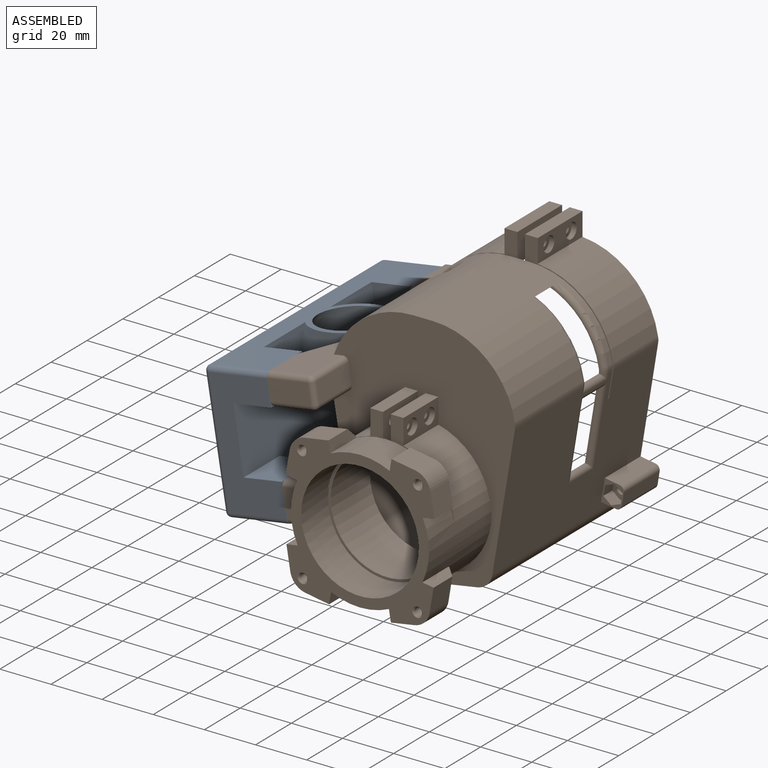
[diagram: assembled view]
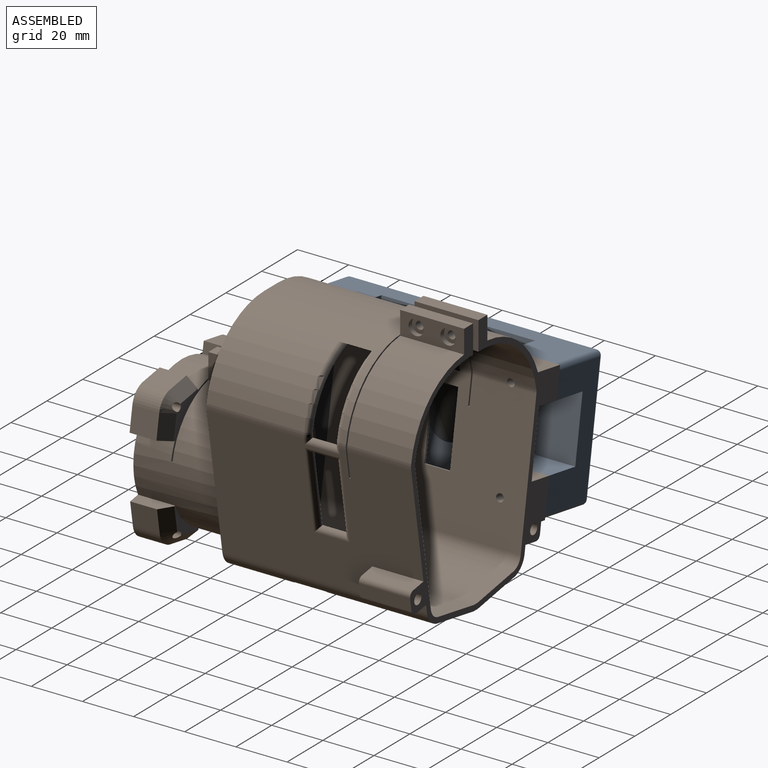
[diagram: assembled view, second angle]
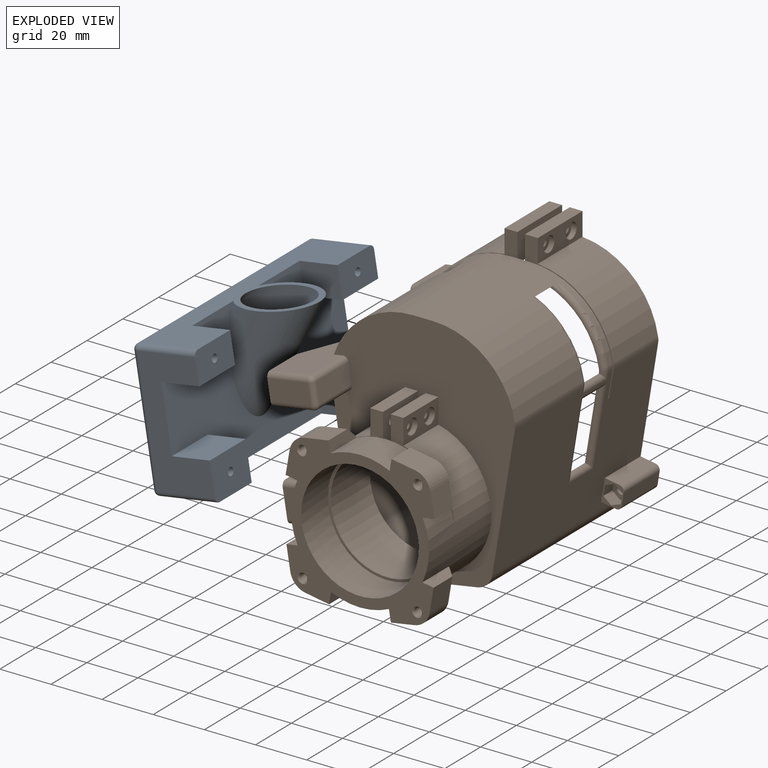
[diagram: exploded view]
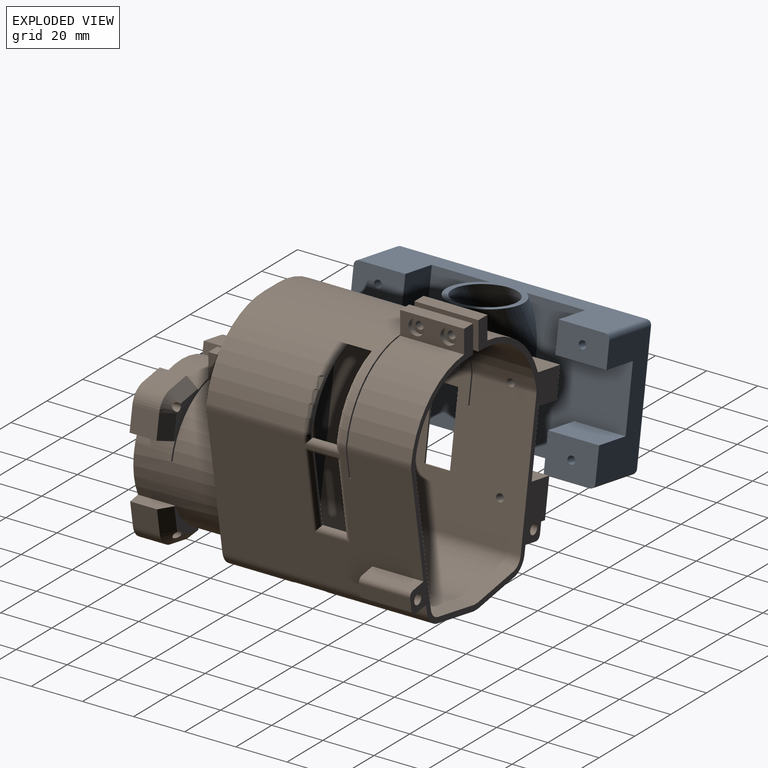
[diagram: exploded view, second angle]
ASSEMBLY  parts=2 mates=2
PART A: 48 faces, bbox 100x68.5x80.9 mm
  f0: cylinder r=1.5mm len=10mm, axis (0,1,0), area 94.2mm2, adj f15,f47
  f1: cylinder r=1.5mm len=10mm, axis (0,1,0), area 94.2mm2, adj f24,f45
  f2: cylinder r=1.5mm len=10mm, axis (0,1,0), area 94.2mm2, adj f21,f43
  f3: cylinder r=1.5mm len=10mm, axis (0,1,0), area 94.2mm2, adj f18,f41
  f4: cylinder r=11mm len=77.71mm, axis (0,0.57,0.82), area 4389.2mm2, adj f8,f9,f29,f30
  f5: cylinder r=13mm len=56.59mm, axis (0,0.57,0.82), area 1931.3mm2, adj f8,f10,f30,f31,f39
  f6: cylinder r=13mm len=55.65mm, axis (0,0.57,0.82), area 1943.3mm2, adj f7,f9
  f7: plane 100x52.39mm, normal (0,1,0), area 3267.5mm2, adj f6,f8,f9,f11,f12,f13,f14,f16
  f8: plane 96x54.21mm, normal (0,0,-1), area 1489.7mm2, adj f4,f5,f7,f17,f18,f20,f21,f27
  f9: plane 96x37.21mm, normal (0,0,1), area 1467.9mm2, adj f4,f6,f7,f13,f15,f23,f24,f25
  f10: plane 96x48.39mm, normal (0,-1,0), area 3571.7mm2, adj f5,f29,f31,f33,f35,f37,f39,f40
  f11: plane 48.39x23mm, normal (1,0,0), area 732.1mm2, adj f7,f14,f15,f16,f18,f26,f27,f37
  f12: plane 48.39x23mm, normal (-1,0,0), area 732.1mm2, adj f7,f19,f21,f22,f24,f25,f28,f33
  f13: plane 15x12mm, normal (-1,0,0), area 180mm2, adj f7,f9,f14,f15
  f14: plane 20x15mm, normal (0,0,-1), area 300mm2, adj f7,f11,f13,f15
  f15: plane 20x12mm, normal (0,1,0), area 232.1mm2, adj f0,f9,f11,f13,f14,f26
  f16: plane 20x15mm, normal (0,0,1), area 300mm2, adj f7,f11,f17,f18
  f17: plane 15x15mm, normal (-1,0,0), area 225mm2, adj f7,f8,f16,f18
  f18: plane 20x15mm, normal (0,1,0), area 292.1mm2, adj f3,f8,f11,f16,f17,f27
  f19: plane 20x15mm, normal (0,0,1), area 300mm2, adj f7,f12,f20,f21
  f20: plane 15x15mm, normal (1,0,0), area 225mm2, adj f7,f8,f19,f21
  f21: plane 20x15mm, normal (0,1,0), area 292.1mm2, adj f2,f8,f12,f19,f20,f28
  f22: plane 20x15mm, normal (0,0,-1), area 300mm2, adj f7,f12,f23,f24
  f23: plane 15x12mm, normal (1,0,0), area 180mm2, adj f7,f9,f22,f24
  f24: plane 20x12mm, normal (0,1,0), area 232.1mm2, adj f1,f9,f12,f22,f23,f25
  f25: cylinder r=2mm len=23mm, axis (0,1,0), area 72.3mm2, adj f9,f12,f24,f34
  f26: cylinder r=2mm len=23mm, axis (0,-1,0), area 72.3mm2, adj f9,f11,f15,f36
  f27: cylinder r=2mm len=23mm, axis (0,1,0), area 72.3mm2, adj f8,f11,f18,f38
  f28: cylinder r=2mm len=23mm, axis (0,-1,0), area 72.3mm2, adj f8,f12,f21,f32
  f29: cylinder r=2mm len=5.71mm, axis (0,1,0), area 55.6mm2, adj f4,f10
  f30: cylinder r=2mm len=5.24mm, axis (0,1,0), area 30.9mm2, adj f4,f5
  f31: cylinder r=2mm len=44.67mm, axis (-1,0,0), area 130.3mm2, adj f5,f8,f10,f32
  f32: sphere r=2mm, area 6.3mm2, adj f28,f31,f33
  f33: cylinder r=2mm len=48.39mm, axis (0,0,1), area 152mm2, adj f10,f12,f32,f34
  f34: sphere r=2mm, area 6.3mm2, adj f25,f33,f35
  f35: cylinder r=2mm len=96mm, axis (1,0,0), area 301.6mm2, adj f9,f10,f34,f36
  f36: sphere r=2mm, area 6.3mm2, adj f26,f35,f37
  f37: cylinder r=2mm len=48.39mm, axis (0,0,-1), area 152mm2, adj f10,f11,f36,f38
  f38: sphere r=2mm, area 6.3mm2, adj f27,f37,f39
  f39: cylinder r=2mm len=44.67mm, axis (-1,0,0), area 130.3mm2, adj f5,f8,f10,f38
  f40: cylinder r=4mm len=15mm, axis (0,-1,0), area 377mm2, adj f10,f41
  f41: plane 8x8mm, normal (0,-1,0), area 43.2mm2, adj f3,f40
  f42: cylinder r=4mm len=15mm, axis (0,-1,0), area 377mm2, adj f10,f43
  f43: plane 8x8mm, normal (0,-1,0), area 43.2mm2, adj f2,f42
  f44: cylinder r=4mm len=15mm, axis (0,-1,0), area 377mm2, adj f10,f45
  f45: plane 8x8mm, normal (0,-1,0), area 43.2mm2, adj f1,f44
  f46: cylinder r=4mm len=15mm, axis (0,-1,0), area 377mm2, adj f10,f47
  f47: plane 8x8mm, normal (0,-1,0), area 43.2mm2, adj f0,f46
PART B: 296 faces, bbox 87.2x115x101.9 mm
  f0: cylinder r=2mm len=15mm, axis (0,-1,0), area 188.5mm2, adj f46,f282
  f1: plane 18.35x12.67mm, normal (0,-1,0), area 122.5mm2, adj f3,f6,f137,f218,f261,f262,f283,f284
  f2: plane 9.82x8.94mm, normal (0,-1,0), area 27.9mm2, adj f28,f220,f221,f223,f253,f254,f289,f290
  f3: cylinder r=2mm len=8.11mm, axis (0.99,0,0.16), area 18.4mm2, adj f1,f6,f219,f252,f283,f288
  f4: cylinder r=7.2mm len=20.5mm, axis (0,-1,0), area 46.7mm2, adj f6,f26,f204,f250
  f5: cylinder r=7.2mm len=38mm, axis (0,-1,0), area 87.5mm2, adj f27,f28,f51,f243
  f6: plane 80x53.72mm, normal (-0.99,0,-0.16), area 3009.1mm2, adj f1,f3,f4,f20,f30,f46,f51,f55
  f7: plane 18x2.08mm, normal (0.16,0,-0.99), area 37.9mm2, adj f46,f137,f218,f261
  f8: plane 58.19x57.86mm, normal (0,-1,0), area 1189.5mm2, adj f21,f22,f52,f114,f115,f116,f117,f118
  f9: plane 53.18x23.01mm, normal (0,1,0), area 376.7mm2, adj f21,f22,f52,f74,f75,f114,f118,f119
  f10: cylinder r=5mm len=9.34mm, axis (0,-1,0), area 13.9mm2, adj f41,f46,f89,f190
  f11: plane 19.5x9.79mm, normal (-1,0,0), area 136.1mm2, adj f21,f67,f68,f77,f172,f173,f174,f175
  f12: plane 19.5x9.79mm, normal (1,0,0), area 134.4mm2, adj f21,f66,f68,f79,f168,f170
  f13: plane 19.5x14.05mm, normal (-1,0,0), area 258.9mm2, adj f61,f66,f68,f79,f166,f167
  f14: plane 19.5x14.05mm, normal (1,0,0), area 258.9mm2, adj f61,f67,f68,f77,f164,f165
  f15: plane 25x9.11mm, normal (-1,0,0), area 172.9mm2, adj f19,f46,f93,f94,f150,f151,f152,f153
  f16: plane 25x9.11mm, normal (1,0,0), area 171.2mm2, adj f46,f49,f91,f92,f146,f148
  f17: plane 25x11.2mm, normal (-1,0,0), area 264.9mm2, adj f46,f47,f91,f92,f144,f145
  f18: plane 25x11.2mm, normal (1,0,0), area 264.9mm2, adj f24,f46,f93,f94,f142,f143
  f19: cylinder r=32.63mm len=29.55mm, axis (0,-1,0), area 976.4mm2, adj f15,f20,f46,f94,f139,f141,f263
  f20: cylinder r=7.2mm len=5mm, axis (0,-1,0), area 11.5mm2, adj f6,f19,f94,f141
  f21: cylinder r=27mm len=54mm, axis (0,1,0), area 3868.5mm2, adj f8,f9,f11,f12,f51,f53,f63,f65
  f22: cylinder r=27mm len=23.19mm, axis (0,1,0), area 347.5mm2, adj f8,f9,f118,f119
  f23: plane 25x1.16mm, normal (0,0,-1), area 28.9mm2, adj f51,f57,f59,f227
  f24: plane 25x2.32mm, normal (0,0,-1), area 58mm2, adj f18,f46,f89,f94
  f25: plane 52.5x7.64mm, normal (0,0,-1), area 401.2mm2, adj f44,f45,f50,f97
  f26: cylinder r=32.63mm len=54.5mm, axis (0,-1,0), area 1947.2mm2, adj f4,f30,f48,f51,f72,f97,f103,f204
  f27: cylinder r=32.63mm len=54.5mm, axis (0,-1,0), area 2055.4mm2, adj f5,f29,f48,f51,f97,f98,f238,f241
  f28: plane 80x53.72mm, normal (0.99,0,-0.16), area 3685.2mm2, adj f2,f5,f29,f46,f51,f54,f62,f92
  f29: cylinder r=7.2mm len=2.5mm, axis (0,-1,0), area 5.8mm2, adj f27,f28,f97,f239
  f30: cylinder r=7.2mm len=2.5mm, axis (0,-1,0), area 5.8mm2, adj f6,f26,f97,f246
  f31: plane 41x19.57mm, normal (-0.17,0,-0.99), area 813.7mm2, adj f32,f46,f55,f236
  f32: cylinder r=7.2mm len=41mm, axis (0,-1,0), area 49.8mm2, adj f31,f46,f58,f235
  f33: cylinder r=7.2mm len=41mm, axis (0,-1,0), area 49.8mm2, adj f34,f46,f58,f233
  f34: plane 41x19.57mm, normal (0.17,0,-0.99), area 813.7mm2, adj f33,f46,f62,f232
  f35: cylinder r=5mm len=38mm, axis (0,-1,0), area 60.7mm2, adj f37,f45,f50,f100
  f36: cylinder r=5mm len=4.5mm, axis (0,-1,0), area 7.2mm2, adj f37,f45,f97,f99
  f37: plane 78x53.72mm, normal (-0.99,0,0.16), area 3954.4mm2, adj f35,f36,f46,f50,f80,f81,f92,f96
  f38: cylinder r=5mm len=43mm, axis (0,-1,0), area 36.2mm2, adj f39,f46,f82,f110
  f39: plane 43x1.16mm, normal (0,0,1), area 49.7mm2, adj f38,f40,f46,f110
  f40: cylinder r=5mm len=43mm, axis (0,-1,0), area 36.2mm2, adj f39,f46,f86,f110
  f41: plane 78x53.72mm, normal (0.99,0,0.16), area 3947.2mm2, adj f10,f42,f43,f46,f50,f87,f88,f94
  f42: cylinder r=5mm len=38mm, axis (0,-1,0), area 60.7mm2, adj f41,f44,f50,f101
  f43: cylinder r=5mm len=4.5mm, axis (0,-1,0), area 7.2mm2, adj f41,f44,f97,f102
  f44: cylinder r=30.43mm len=52.5mm, axis (0,-1,0), area 1883.6mm2, adj f25,f42,f43,f50,f97,f101,f102,f103
  f45: cylinder r=30.43mm len=52.5mm, axis (0,-1,0), area 1883.6mm2, adj f25,f35,f36,f50,f97,f98,f99,f100
  f46: plane 101.9x83.79mm, normal (0,1,0), area 1042.3mm2, adj f0,f6,f7,f10,f15,f16,f17,f18
  f47: plane 25x2.32mm, normal (0,0,-1), area 58mm2, adj f17,f46,f90,f92
  f48: plane 54.5x7.64mm, normal (0,0,1), area 416.4mm2, adj f26,f27,f51,f97
  f49: cylinder r=32.63mm len=29.55mm, axis (0,-1,0), area 1086.2mm2, adj f16,f46,f54,f92
  f50: plane 88.5x67.88mm, normal (0,1,0), area 3388.3mm2, adj f25,f35,f37,f41,f42,f44,f45,f61
  f51: plane 92.9x71.44mm, normal (0,-1,0), area 3406.4mm2, adj f5,f6,f21,f23,f26,f27,f28,f48
  f52: cylinder r=23mm len=46mm, axis (0,1,0), area 2135.6mm2, adj f8,f9,f68,f74,f75
  f53: plane 15.54x13.11mm, normal (0,-1,0), area 149.2mm2, adj f21,f64,f280,f281
  f54: cylinder r=7.2mm len=25mm, axis (0,-1,0), area 57.5mm2, adj f28,f46,f49,f92
  f55: cylinder r=7.2mm len=80mm, axis (0,-1,0), area 661.1mm2, adj f6,f31,f46,f51,f56,f107,f230,f237
  f56: plane 25x19.57mm, normal (-0.17,0,-0.99), area 496.2mm2, adj f51,f55,f57,f229
  f57: cylinder r=7.2mm len=25mm, axis (0,-1,0), area 30.3mm2, adj f23,f51,f56,f228
  f58: plane 41x1.16mm, normal (0,0,-1), area 47.4mm2, adj f32,f33,f46,f234
  f59: cylinder r=7.2mm len=25mm, axis (0,-1,0), area 30.3mm2, adj f23,f51,f60,f226
  f60: plane 25x19.57mm, normal (0.17,0,-0.99), area 496.2mm2, adj f51,f59,f62,f225
  f61: cylinder r=22mm len=44mm, axis (0,-1,0), area 2951.8mm2, adj f13,f14,f50,f51,f68,f76,f77,f78
  f62: cylinder r=7.2mm len=80mm, axis (0,-1,0), area 661.1mm2, adj f28,f34,f46,f51,f60,f108,f224,f231
  f63: plane 31.5x14.25mm, normal (-0.16,0,0.99), area 308.3mm2, adj f6,f21,f51,f64,f257,f280
  f64: plane 19.64x14.8mm, normal (-0.99,0,-0.16), area 278.4mm2, adj f53,f63,f65,f195,f255,f256,f257,f280
  f65: plane 31.5x14.25mm, normal (0.16,0,-0.99), area 308.3mm2, adj f6,f21,f51,f64,f255,f281
  f66: plane 19.5x5mm, normal (0,0,1), area 97.5mm2, adj f12,f13,f68,f79
  f67: plane 19.5x5mm, normal (0,0,1), area 97.5mm2, adj f11,f14,f68,f77
  f68: plane 59x53.18mm, normal (0,-1,0), area 499mm2, adj f11,f12,f13,f14,f21,f52,f61,f66
  f69: plane 19.64x11.84mm, normal (-0.99,0,-0.16), area 219.4mm2, adj f70,f72,f73,f194,f258,f259,f260,f273
  f70: plane 31.5x15.79mm, normal (0.16,0,-0.99), area 336.4mm2, adj f6,f51,f69,f258,f276,f279
  f71: plane 18x7.89mm, normal (0.99,0,0.16), area 144mm2, adj f51,f274,f277,f279
  f72: plane 35.9x15.79mm, normal (-0.16,0,0.99), area 376.3mm2, adj f26,f51,f69,f260,f273,f274
  f73: plane 17.08x10.48mm, normal (0,-1,0), area 128mm2, adj f69,f273,f276,f277
  f74: plane 3.94x0.69mm, normal (0.17,0,0.98), area 2mm2, adj f9,f21,f52,f68
  f75: plane 3.94x0.69mm, normal (-0.17,0,0.98), area 2mm2, adj f9,f21,f52,f68
  f76: plane 4.92x0.87mm, normal (0.17,0,0.98), area 2.5mm2, adj f21,f51,f61,f77
  f77: plane 32.18x25.09mm, normal (0,1,0), area 210.2mm2, adj f11,f14,f21,f61,f67,f76
  f78: plane 4.92x0.87mm, normal (-0.17,0,0.98), area 2.5mm2, adj f21,f51,f61,f79
  f79: plane 32.18x25.09mm, normal (0,1,0), area 210.2mm2, adj f12,f13,f21,f61,f66,f78
  f80: cylinder r=5mm len=25mm, axis (0,-1,0), area 40mm2, adj f37,f46,f90,f92
  f81: cylinder r=5mm len=78mm, axis (0,-1,0), area 483.5mm2, adj f37,f46,f50,f82
  f82: plane 78x19.57mm, normal (-0.17,0,0.99), area 1385.4mm2, adj f38,f46,f50,f81,f83,f108,f109,f110
  f83: cylinder r=5mm len=25mm, axis (0,-1,0), area 21.1mm2, adj f50,f82,f84,f109
  f84: plane 25x1.16mm, normal (0,0,1), area 28.9mm2, adj f50,f83,f85,f109
  f85: cylinder r=5mm len=25mm, axis (0,-1,0), area 21.1mm2, adj f50,f84,f86,f109
  f86: plane 78x19.57mm, normal (0.17,0,0.99), area 1385.4mm2, adj f40,f46,f50,f85,f87,f107,f109,f110
  f87: cylinder r=5mm len=78mm, axis (0,-1,0), area 483.5mm2, adj f41,f46,f50,f86
  f88: cylinder r=5mm len=14.34mm, axis (0,-1,0), area 21.9mm2, adj f41,f89,f94,f190
  f89: cylinder r=30.43mm len=30.06mm, axis (0,-1,0), area 1072.5mm2, adj f10,f24,f46,f88,f94,f190
  f90: cylinder r=30.43mm len=30.06mm, axis (0,-1,0), area 1075.5mm2, adj f46,f47,f80,f92
  f91: plane 25x5mm, normal (0,0,1), area 125mm2, adj f16,f17,f46,f92
  f92: plane 49x34.64mm, normal (0,-1,0), area 175.7mm2, adj f16,f17,f28,f37,f47,f49,f54,f80
  f93: plane 25x5mm, normal (0,0,1), area 125mm2, adj f15,f18,f46,f94
  f94: plane 49x34.64mm, normal (0,-1,0), area 175.7mm2, adj f6,f15,f18,f19,f20,f24,f41,f88
  f95: plane 2.23x0.5mm, normal (0,0,1), area 1.1mm2, adj f6,f41,f94,f97
  f96: plane 2.23x0.5mm, normal (0,0,1), area 1.1mm2, adj f28,f37,f92,f97
  f97: plane 72.28x40mm, normal (0,1,0), area 267.7mm2, adj f6,f25,f26,f27,f28,f29,f30,f36
  f98: plane 14x7.5mm, normal (0,0,-1), area 79.8mm2, adj f27,f45,f99,f100,f238,f241
  f99: plane 27.02x24.83mm, normal (0,-1,0), area 7.8mm2, adj f36,f37,f45,f98,f238,f239,f240,f242
  f100: plane 27.02x24.83mm, normal (0,1,0), area 7.8mm2, adj f35,f37,f45,f98,f241,f242,f243,f244
  f101: plane 27.02x24.83mm, normal (0,1,0), area 7.8mm2, adj f41,f42,f44,f103,f248,f249,f250,f251
  f102: plane 27.02x24.83mm, normal (0,-1,0), area 7.8mm2, adj f41,f43,f44,f103,f245,f246,f247,f248
  f103: plane 14x7.5mm, normal (0,0,-1), area 79.8mm2, adj f26,f44,f101,f102,f245,f251
  f104: plane 10.05x0.53mm, normal (0,0,-1), area 5.3mm2, adj f41,f105,f106,f269,f271,f272
  f105: plane 28.02x4.79mm, normal (0,-1,0), area 5.7mm2, adj f41,f104,f269,f270
  f106: plane 28.02x4.79mm, normal (0,1,0), area 5.7mm2, adj f41,f104,f270,f272
  f107: plane 14.02x7.32mm, normal (0,0,-1), area 76.2mm2, adj f55,f86,f109,f110,f229,f230,f236,f237
  f108: plane 14.02x7.32mm, normal (0,0,-1), area 76.2mm2, adj f62,f82,f109,f110,f224,f225,f231,f232
  f109: plane 37.28x3mm, normal (0,1,0), area 7.3mm2, adj f82,f83,f84,f85,f86,f107,f108,f225
  f110: plane 37.28x3mm, normal (0,-1,0), area 7.3mm2, adj f38,f39,f40,f82,f86,f107,f108,f232
  f111: plane 28.02x4.79mm, normal (0,1,0), area 5.7mm2, adj f37,f113,f266,f268
  f112: plane 28.02x4.79mm, normal (0,-1,0), area 5.7mm2, adj f37,f113,f265,f266
  f113: plane 10.05x0.53mm, normal (0,0,-1), area 5.3mm2, adj f37,f111,f112,f265,f267,f268
  f114: plane 14.5x4.58mm, normal (0.17,0,-0.99), area 59.3mm2, adj f8,f9,f21,f115,f211
  f115: plane 10.5x9.26mm, normal (0.99,0,0.17), area 98.7mm2, adj f8,f114,f116,f211
  f116: cylinder r=7.2mm len=10.5mm, axis (0,1,0), area 93.7mm2, adj f8,f115,f117,f210
  f117: plane 10.5x9.27mm, normal (0.16,0,0.99), area 98.7mm2, adj f8,f116,f118,f209
  f118: plane 14.5x4.38mm, normal (-0.99,0,0.16), area 56.4mm2, adj f8,f9,f22,f117,f209
  f119: plane 14.5x4.38mm, normal (0.99,0,0.16), area 56.4mm2, adj f8,f9,f22,f120,f214
  f120: plane 10.5x9.27mm, normal (-0.16,0,0.99), area 98.7mm2, adj f8,f119,f121,f214
  f121: cylinder r=7.2mm len=10.5mm, axis (0,1,0), area 93.7mm2, adj f8,f120,f122,f213
  f122: plane 10.5x9.26mm, normal (-0.99,0,0.17), area 98.7mm2, adj f8,f121,f123,f212
  f123: plane 14.5x4.58mm, normal (-0.17,0,-0.99), area 59.3mm2, adj f8,f9,f21,f122,f212
  f124: plane 14.5x4.38mm, normal (-0.16,0,0.99), area 56.4mm2, adj f8,f21,f125,f129,f217
  f125: plane 10.5x9.27mm, normal (-0.99,0,-0.16), area 98.7mm2, adj f8,f124,f126,f217
  f126: cylinder r=7.2mm len=10.5mm, axis (0,1,0), area 93.7mm2, adj f8,f125,f127,f216
  f127: plane 10.5x9.26mm, normal (-0.17,0,-0.99), area 98.7mm2, adj f8,f126,f128,f215
  f128: plane 14.5x4.58mm, normal (0.99,0,-0.17), area 59.3mm2, adj f8,f21,f127,f129,f215
  f129: plane 13.56x13.51mm, normal (0,1,0), area 48.7mm2, adj f21,f124,f128,f197,f215,f216,f217
  f130: plane 10.5x9.27mm, normal (0.99,0,-0.16), area 98.7mm2, adj f8,f131,f134,f206
  f131: plane 14.5x4.38mm, normal (0.16,0,0.99), area 56.4mm2, adj f8,f21,f130,f135,f206
  f132: plane 14.5x4.58mm, normal (-0.99,0,-0.17), area 59.3mm2, adj f8,f21,f133,f135,f208
  f133: plane 10.5x9.26mm, normal (0.17,0,-0.99), area 98.7mm2, adj f8,f132,f134,f208
  f134: cylinder r=7.2mm len=10.5mm, axis (0,1,0), area 93.7mm2, adj f8,f130,f133,f207
  f135: plane 13.56x13.51mm, normal (0,1,0), area 48.7mm2, adj f21,f131,f132,f196,f206,f207,f208
  f136: plane 18x9.87mm, normal (-0.16,0,0.99), area 180mm2, adj f6,f46,f137,f262
  f137: plane 20x14.8mm, normal (-0.99,0,-0.16), area 285.7mm2, adj f1,f7,f46,f136,f193,f261,f262
  f138: plane 18x9.87mm, normal (0.16,0,-0.99), area 180mm2, adj f6,f46,f140,f264
  f139: plane 18x12.38mm, normal (-0.16,0,0.99), area 225.7mm2, adj f19,f46,f140,f263
  f140: plane 20x11.84mm, normal (-0.99,0,-0.16), area 225.7mm2, adj f46,f138,f139,f141,f192,f263,f264
  f141: plane 11.41x9.76mm, normal (0,-1,0), area 83.2mm2, adj f6,f19,f20,f140,f263,f264
  f142: cylinder r=1.55mm len=3.1mm, axis (-1,0,0), area 29.2mm2, adj f18,f156
  f143: cylinder r=1.55mm len=3.1mm, axis (-1,0,0), area 29.2mm2, adj f18,f163
  f144: cylinder r=1.55mm len=3.1mm, axis (1,0,0), area 29.2mm2, adj f17,f149
  f145: cylinder r=1.55mm len=3.1mm, axis (1,0,0), area 29.2mm2, adj f17,f147
  f146: cylinder r=3mm len=6mm, axis (1,0,0), area 37.7mm2, adj f16,f147
  f147: plane 6x6mm, normal (1,0,0), area 20.7mm2, adj f145,f146
  f148: cylinder r=3mm len=6mm, axis (1,0,0), area 37.7mm2, adj f16,f149
  f149: plane 6x6mm, normal (1,0,0), area 20.7mm2, adj f144,f148
  f150: plane 3.25x2mm, normal (0,1,0), area 6.5mm2, adj f15,f151,f155,f156
  f151: plane 2.81x2mm, normal (0,0.5,-0.87), area 6.5mm2, adj f15,f150,f152,f156
  f152: plane 2.81x2mm, normal (0,-0.5,-0.87), area 6.5mm2, adj f15,f151,f153,f156
  f153: plane 3.25x2mm, normal (0,-1,0), area 6.5mm2, adj f15,f152,f154,f156
  f154: plane 2.81x2mm, normal (0,-0.5,0.87), area 6.5mm2, adj f15,f153,f155,f156
  f155: plane 2.81x2mm, normal (0,0.5,0.87), area 6.5mm2, adj f15,f150,f154,f156
  f156: plane 6.5x5.63mm, normal (-1,0,0), area 19.9mm2, adj f142,f150,f151,f152,f153,f154,f155
  f157: plane 2.81x2mm, normal (0,0.5,-0.87), area 6.5mm2, adj f15,f158,f162,f163
  f158: plane 2.81x2mm, normal (0,-0.5,-0.87), area 6.5mm2, adj f15,f157,f159,f163
  f159: plane 3.25x2mm, normal (0,-1,0), area 6.5mm2, adj f15,f158,f160,f163
  f160: plane 2.81x2mm, normal (0,-0.5,0.87), area 6.5mm2, adj f15,f159,f161,f163
  f161: plane 2.81x2mm, normal (0,0.5,0.87), area 6.5mm2, adj f15,f160,f162,f163
  f162: plane 3.25x2mm, normal (0,1,0), area 6.5mm2, adj f15,f157,f161,f163
  f163: plane 6.5x5.63mm, normal (-1,0,0), area 19.9mm2, adj f143,f157,f158,f159,f160,f161,f162
  f164: cylinder r=1.55mm len=3.1mm, axis (-1,0,0), area 29.2mm2, adj f14,f178
  f165: cylinder r=1.55mm len=3.1mm, axis (-1,0,0), area 29.2mm2, adj f14,f185
  f166: cylinder r=1.55mm len=3.1mm, axis (1,0,0), area 29.2mm2, adj f13,f171
  f167: cylinder r=1.55mm len=3.1mm, axis (1,0,0), area 29.2mm2, adj f13,f169
  f168: cylinder r=3mm len=6mm, axis (1,0,0), area 37.7mm2, adj f12,f169
  f169: plane 6x6mm, normal (1,0,0), area 20.7mm2, adj f167,f168
  f170: cylinder r=3mm len=6mm, axis (1,0,0), area 37.7mm2, adj f12,f171
  f171: plane 6x6mm, normal (1,0,0), area 20.7mm2, adj f166,f170
  f172: plane 3.25x2mm, normal (0,-1,0), area 6.5mm2, adj f11,f173,f177,f178
  f173: plane 2.81x2mm, normal (0,-0.5,0.87), area 6.5mm2, adj f11,f172,f174,f178
  f174: plane 2.81x2mm, normal (0,0.5,0.87), area 6.5mm2, adj f11,f173,f175,f178
  f175: plane 3.25x2mm, normal (0,1,0), area 6.5mm2, adj f11,f174,f176,f178
  f176: plane 2.81x2mm, normal (0,0.5,-0.87), area 6.5mm2, adj f11,f175,f177,f178
  f177: plane 2.81x2mm, normal (0,-0.5,-0.87), area 6.5mm2, adj f11,f172,f176,f178
  f178: plane 6.5x5.63mm, normal (-1,0,0), area 19.9mm2, adj f164,f172,f173,f174,f175,f176,f177
  f179: plane 2.81x2mm, normal (0,0.5,-0.87), area 6.5mm2, adj f11,f180,f184,f185
  f180: plane 2.81x2mm, normal (0,-0.5,-0.87), area 6.5mm2, adj f11,f179,f181,f185
  f181: plane 3.25x2mm, normal (0,-1,0), area 6.5mm2, adj f11,f180,f182,f185
  f182: plane 2.81x2mm, normal (0,-0.5,0.87), area 6.5mm2, adj f11,f181,f183,f185
  f183: plane 2.81x2mm, normal (0,0.5,0.87), area 6.5mm2, adj f11,f182,f184,f185
  f184: plane 3.25x2mm, normal (0,1,0), area 6.5mm2, adj f11,f179,f183,f185
  f185: plane 6.5x5.63mm, normal (-1,0,0), area 19.9mm2, adj f165,f179,f180,f181,f182,f183,f184
  f186: cylinder r=1.5mm len=14.79mm, axis (-0.99,0,-0.16), area 136.7mm2, adj f187,f195
  f187: plane 3x2.96mm, normal (-0.99,0,-0.16), area 7.1mm2, adj f186
  f188: cylinder r=1.5mm len=14.79mm, axis (-0.99,0,-0.16), area 136.7mm2, adj f189,f194
  f189: plane 3x2.96mm, normal (-0.99,0,-0.16), area 7.1mm2, adj f188
  f190: cylinder r=1.5mm len=12.73mm, axis (-0.99,0,-0.16), area 112.8mm2, adj f10,f41,f88,f89,f192
  f191: cylinder r=1.5mm len=12.03mm, axis (-0.99,0,-0.16), area 110.3mm2, adj f41,f193
  f192: cone r=1.5mm half-angle=45deg, axis (-0.99,0,-0.16), area 7.8mm2, adj f140,f190
  f193: cone r=1.5mm half-angle=45deg, axis (-0.99,0,-0.16), area 7.8mm2, adj f137,f191
  f194: cone r=1.5mm half-angle=45deg, axis (-0.99,0,-0.16), area 7.8mm2, adj f69,f188
  f195: cone r=1.5mm half-angle=45deg, axis (-0.99,0,-0.16), area 7.8mm2, adj f64,f186
  f196: cylinder r=1.5mm len=14mm, axis (0,-1,0), area 126.6mm2, adj f135,f201,f207
  f197: cylinder r=1.5mm len=14mm, axis (0,-1,0), area 126.7mm2, adj f129,f200,f216
  f198: cylinder r=1.5mm len=14mm, axis (0,-1,0), area 126.6mm2, adj f9,f203,f213
  f199: cylinder r=1.5mm len=14mm, axis (0,-1,0), area 126.6mm2, adj f9,f202,f210
  f200: cone r=1.5mm half-angle=45deg, axis (0,-1,0), area 7.8mm2, adj f8,f197
  f201: cone r=1.5mm half-angle=45deg, axis (0,-1,0), area 7.8mm2, adj f8,f196
  f202: cone r=2mm half-angle=45deg, axis (0,-1,0), area 7.8mm2, adj f8,f199
  f203: cone r=1.5mm half-angle=45deg, axis (0,-1,0), area 7.8mm2, adj f8,f198
  f204: plane 19.56x11.15mm, normal (-0.85,0.5,-0.14), area 162mm2, adj f4,f6,f26,f258,f259,f260
  f205: plane 16.86x12.43mm, normal (-0.85,0.5,-0.14), area 214.1mm2, adj f6,f255,f256,f257
  f206: plane 9.92x5.47mm, normal (0.7,0.71,-0.11), area 53.1mm2, adj f130,f131,f135,f207
  f207: cone r=7.2mm half-angle=45deg, axis (0,-1,0), area 31mm2, adj f134,f135,f196,f206,f208
  f208: plane 9.93x5.52mm, normal (0.12,0.71,-0.7), area 53.1mm2, adj f132,f133,f135,f207
  f209: plane 9.92x5.47mm, normal (0.11,0.71,0.7), area 53.1mm2, adj f9,f117,f118,f210
  f210: cone r=7.2mm half-angle=45deg, axis (0,-1,0), area 31mm2, adj f9,f116,f199,f209,f211
  f211: plane 9.93x5.52mm, normal (0.7,0.71,0.12), area 53.1mm2, adj f9,f114,f115,f210
  f212: plane 9.93x5.52mm, normal (-0.7,0.71,0.12), area 53.1mm2, adj f9,f122,f123,f213
  f213: cone r=3.2mm half-angle=45deg, axis (0,-1,0), area 31mm2, adj f9,f121,f198,f212,f214
  f214: plane 9.92x5.47mm, normal (-0.11,0.71,0.7), area 53.1mm2, adj f9,f119,f120,f213
  f215: plane 9.93x5.52mm, normal (-0.12,0.71,-0.7), area 53.1mm2, adj f127,f128,f129,f216
  f216: cone r=3.2mm half-angle=45deg, axis (0,-1,0), area 31mm2, adj f126,f129,f197,f215,f217
  f217: plane 9.92x5.47mm, normal (-0.7,0.71,-0.11), area 53.1mm2, adj f124,f125,f129,f216
  f218: plane 20x6.22mm, normal (-0.99,0,-0.16), area 86.9mm2, adj f1,f7,f46,f252,f261
  f219: plane 18x5.82mm, normal (0.16,0,-0.99), area 106.1mm2, adj f3,f6,f46,f252
  f220: plane 20x4.89mm, normal (0.99,0,-0.16), area 99.2mm2, adj f2,f46,f253,f254
  f221: plane 20x5.82mm, normal (0.16,0,0.99), area 117.9mm2, adj f2,f28,f46,f254
  f222: cylinder r=2mm len=15mm, axis (0,-1,0), area 188.5mm2, adj f46,f295
  f223: plane 20x5.82mm, normal (-0.16,0,-0.99), area 117.9mm2, adj f2,f28,f46,f253
  f224: torus R=5.2mm, axis (0,-1,0), area 7.3mm2, adj f62,f108,f225
  f225: cylinder r=2mm len=19.9mm, axis (0.99,0,0.17), area 61.9mm2, adj f60,f108,f109,f224,f226
  f226: torus R=5.2mm, axis (0,-1,0), area 3.4mm2, adj f59,f109,f225,f227
  f227: cylinder r=2mm len=2mm, axis (-1,0,0), area 3.6mm2, adj f23,f109,f226,f228
  f228: torus R=5.2mm, axis (0,-1,0), area 3.4mm2, adj f57,f109,f227,f229
  f229: cylinder r=2mm len=19.9mm, axis (0.99,0,-0.17), area 61.9mm2, adj f56,f107,f109,f228,f230
  f230: torus R=5.2mm, axis (0,-1,0), area 7.3mm2, adj f55,f107,f229
  f231: torus R=5.2mm, axis (0,-1,0), area 7.3mm2, adj f62,f108,f232
  f232: cylinder r=2mm len=19.9mm, axis (-0.99,0,-0.17), area 61.9mm2, adj f34,f108,f110,f231,f233
  f233: torus R=5.2mm, axis (0,-1,0), area 3.4mm2, adj f33,f110,f232,f234
  f234: cylinder r=2mm len=2mm, axis (1,0,0), area 3.6mm2, adj f58,f110,f233,f235
  f235: torus R=5.2mm, axis (0,-1,0), area 3.4mm2, adj f32,f110,f234,f236
  f236: cylinder r=2mm len=19.9mm, axis (-0.99,0,0.17), area 61.9mm2, adj f31,f107,f110,f235,f237
  f237: torus R=5.2mm, axis (0,-1,0), area 7.3mm2, adj f55,f107,f236
  f238: torus R=30.63mm, axis (0,1,0), area 106.7mm2, adj f27,f98,f99,f239
  f239: torus R=5.2mm, axis (0,1,0), area 6.5mm2, adj f29,f99,f238,f240
  f240: cylinder r=2mm len=2.53mm, axis (-0.16,0,-0.99), area 3mm2, adj f28,f99,f239,f242
  f241: torus R=30.63mm, axis (0,1,0), area 106.7mm2, adj f27,f98,f100,f243
  f242: cylinder r=2mm len=14mm, axis (0,1,0), area 38mm2, adj f28,f37,f99,f100,f240,f244
  f243: torus R=5.2mm, axis (0,1,0), area 6.5mm2, adj f5,f100,f241,f244
  f244: cylinder r=2mm len=2.53mm, axis (0.16,0,0.99), area 3mm2, adj f28,f100,f242,f243
  f245: torus R=30.63mm, axis (0,1,0), area 106.7mm2, adj f26,f102,f103,f246
  f246: torus R=5.2mm, axis (0,1,0), area 6.5mm2, adj f30,f102,f245,f247
  f247: cylinder r=2mm len=2.53mm, axis (-0.16,0,0.99), area 3mm2, adj f6,f102,f246,f248
  f248: cylinder r=2mm len=14mm, axis (0,1,0), area 38mm2, adj f6,f41,f101,f102,f247,f249
  f249: cylinder r=2mm len=2.53mm, axis (0.16,0,-0.99), area 3mm2, adj f6,f101,f248,f250
  f250: torus R=5.2mm, axis (0,1,0), area 6.5mm2, adj f4,f101,f249,f251
  f251: torus R=30.63mm, axis (0,1,0), area 106.7mm2, adj f26,f101,f103,f250
  f252: cylinder r=2mm len=20mm, axis (0,-1,0), area 60.5mm2, adj f3,f46,f218,f219
  f253: cylinder r=2mm len=20mm, axis (0,-1,0), area 62.8mm2, adj f2,f46,f220,f223
  f254: cylinder r=2mm len=20mm, axis (0,1,0), area 62.8mm2, adj f2,f46,f220,f221
  f255: cylinder r=2mm len=21.32mm, axis (-0.49,-0.87,-0.08), area 62.6mm2, adj f6,f64,f65,f205,f256
  f256: cylinder r=2mm len=12.87mm, axis (-0.16,0,0.99), area 12.6mm2, adj f64,f205,f255,f257
  f257: cylinder r=2mm len=21.32mm, axis (0.49,0.87,0.08), area 62.6mm2, adj f6,f63,f64,f205,f256
  f258: cylinder r=2mm len=21.32mm, axis (-0.49,-0.87,-0.08), area 62.6mm2, adj f6,f69,f70,f204,f259
  f259: cylinder r=2mm len=9.91mm, axis (-0.16,0,0.99), area 9.4mm2, adj f69,f204,f258,f260
  f260: cylinder r=2mm len=24.44mm, axis (0.49,0.87,0.08), area 76.3mm2, adj f26,f69,f72,f204,f259
  f261: cylinder r=2mm len=2.4mm, axis (0.99,0,0.16), area 6.6mm2, adj f1,f7,f137,f218
  f262: cylinder r=2mm len=10.19mm, axis (-0.99,0,-0.16), area 31.4mm2, adj f1,f6,f136,f137
  f263: cylinder r=2mm len=12.7mm, axis (-0.99,0,-0.16), area 38.2mm2, adj f19,f139,f140,f141
  f264: cylinder r=2mm len=10.19mm, axis (0.99,0,0.16), area 31.4mm2, adj f6,f138,f140,f141
  f265: cylinder r=2mm len=32.32mm, axis (-0.16,0,-0.99), area 93.9mm2, adj f28,f112,f113,f266,f267
  f266: cylinder r=2mm len=14mm, axis (0,1,0), area 38mm2, adj f28,f37,f111,f112,f265,f268
  f267: cylinder r=2mm len=14mm, axis (0,1,0), area 32.7mm2, adj f28,f113,f265,f268
  f268: cylinder r=2mm len=32.32mm, axis (0.16,0,0.99), area 93.9mm2, adj f28,f111,f113,f266,f267
  f269: cylinder r=2mm len=32.32mm, axis (-0.16,0,0.99), area 93.9mm2, adj f6,f104,f105,f270,f271
  f270: cylinder r=2mm len=14mm, axis (0,1,0), area 38mm2, adj f6,f41,f105,f106,f269,f272
  f271: cylinder r=2mm len=14mm, axis (0,-1,0), area 32.7mm2, adj f6,f104,f269,f272
  f272: cylinder r=2mm len=32.32mm, axis (0.16,0,-0.99), area 93.9mm2, adj f6,f104,f106,f270,f271
  f273: cylinder r=2mm len=16.11mm, axis (0.99,0,0.16), area 50.3mm2, adj f69,f72,f73,f275
  f274: cylinder r=2mm len=18mm, axis (0,1,0), area 56.5mm2, adj f51,f71,f72,f275
  f275: sphere r=2mm, area 6.3mm2, adj f273,f274,f277
  f276: cylinder r=2mm len=16.11mm, axis (-0.99,0,-0.16), area 50.3mm2, adj f69,f70,f73,f278
  f277: cylinder r=2mm len=8.22mm, axis (0.16,0,-0.99), area 25.1mm2, adj f71,f73,f275,f278
  f278: sphere r=2mm, area 6.3mm2, adj f276,f277,f279
  f279: cylinder r=2mm len=18mm, axis (0,-1,0), area 56.5mm2, adj f51,f70,f71,f278
  f280: cylinder r=2mm len=14.57mm, axis (0.99,0,0.16), area 44.8mm2, adj f21,f53,f63,f64
  f281: cylinder r=2mm len=14.57mm, axis (-0.99,0,-0.16), area 44.8mm2, adj f21,f53,f64,f65
  f282: plane 7.86x7.45mm, normal (0,-1,0), area 28.6mm2, adj f0,f283,f284,f285,f286,f287,f288
  f283: plane 5x3.08mm, normal (-0.63,0,0.77), area 19.3mm2, adj f1,f3,f282,f284,f288
  f284: plane 5x3.93mm, normal (-0.99,0,-0.16), area 19.9mm2, adj f1,f282,f283,f285
  f285: plane 5x3.72mm, normal (-0.35,0,-0.94), area 19.9mm2, adj f1,f282,f284,f286
  f286: plane 5x3.08mm, normal (0.63,0,-0.77), area 19.9mm2, adj f1,f282,f285,f287
  f287: plane 5x3.93mm, normal (0.99,0,0.16), area 19.9mm2, adj f1,f282,f286,f288
  f288: plane 5x3.72mm, normal (0.35,0,0.94), area 19.3mm2, adj f1,f3,f282,f283,f287
  f289: plane 5x3.08mm, normal (0.63,0,0.77), area 19.9mm2, adj f2,f290,f294,f295
  f290: plane 5x3.72mm, normal (-0.35,0,0.94), area 19.9mm2, adj f2,f289,f291,f295
  f291: plane 5x3.93mm, normal (-0.99,0,0.16), area 19.9mm2, adj f2,f290,f292,f295
  f292: plane 5x3.08mm, normal (-0.63,0,-0.77), area 19.9mm2, adj f2,f291,f293,f295
  f293: plane 5x3.72mm, normal (0.35,0,-0.94), area 19.9mm2, adj f2,f292,f294,f295
  f294: plane 5x3.93mm, normal (0.99,0,-0.16), area 19.9mm2, adj f2,f289,f293,f295
  f295: plane 7.86x7.45mm, normal (0,-1,0), area 28.6mm2, adj f222,f289,f290,f291,f292,f293,f294
PLACE A rot(axis=(0.08,-0.08,-0.99),90.4deg) t=(-101.36,17,9.26)mm
PLACE B t=(-43.7,-12.81,-0.15)mm
MATE planar A.f21 <-> B.f137  axis (0.99,0,0.16) through (-83.54,56.98,-6.75)mm
MATE planar A.f18 <-> B.f195  axis (0.99,0,0.16) through (-83.54,-22.97,-6.75)mm
